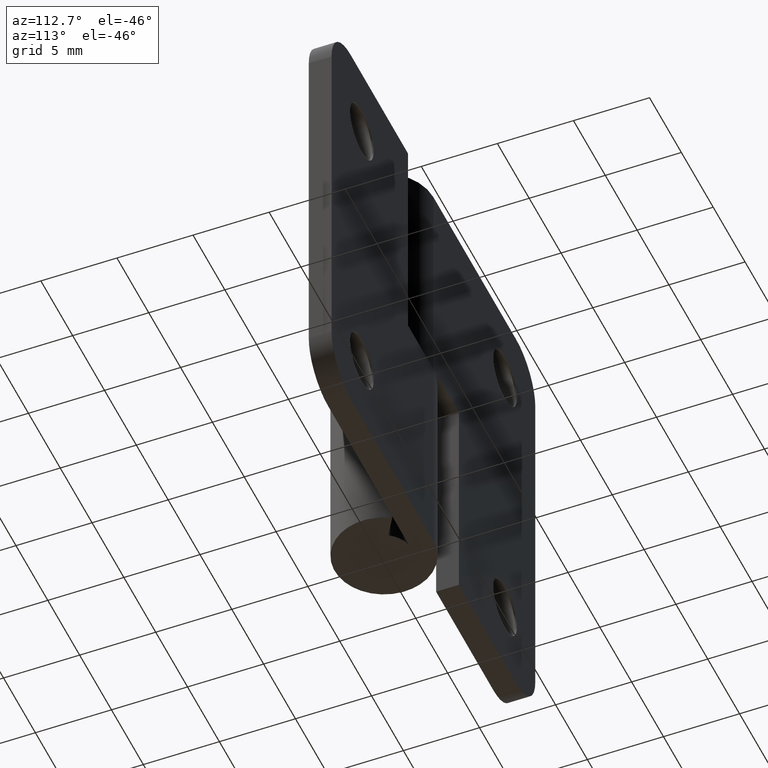
[diagram: clean part render]
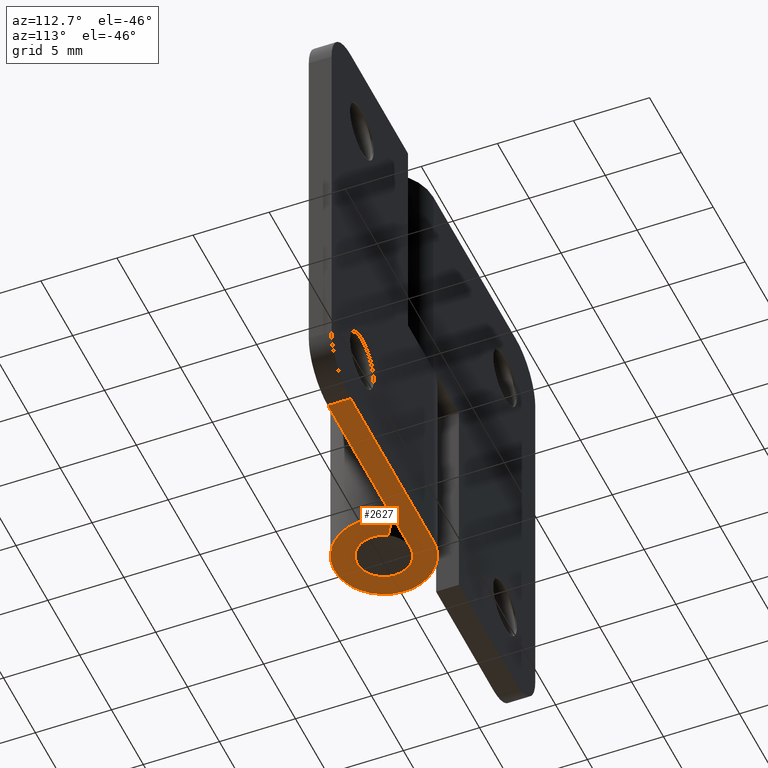
[diagram: same view with one face highlighted and labeled with its STEP entity id]
A machine part, auxiliary view. The second image highlights one B-rep face of the part: STEP entity #2627.
In plain terms, the highlighted face is a freeform B-spline surface patch.
Its self-contained STEP definition (entity closure, byte-faithful):
#2491=CARTESIAN_POINT('',(13.0,1.750000000000000,0.0));
#2492=VERTEX_POINT('',#2491);
#2508=CARTESIAN_POINT('',(13.0,3.250000000000000,0.0));
#2509=VERTEX_POINT('',#2508);
#2510=CARTESIAN_POINT('',(13.0,3.250000000000000,0.0));
#2511=CARTESIAN_POINT('',(13.0,1.750000000000000,0.0));
#2512=QUASI_UNIFORM_CURVE('',1,(#2510,#2511),.UNSPECIFIED.,.F.,.U.);
#2513=EDGE_CURVE('',#2509,#2492,#2512,.T.);
#2558=CARTESIAN_POINT('',(-4.061576820179652,-3.574231957580325,0.0));
#2559=CARTESIAN_POINT('',(13.811682640411140,-3.574231957580325,0.0));
#2560=CARTESIAN_POINT('',(-4.061576820179652,3.574654085169637,0.0));
#2561=CARTESIAN_POINT('',(13.811682640411140,3.574654085169637,0.0));
#2562=B_SPLINE_SURFACE_WITH_KNOTS('',1,1,((#2558,#2560),(#2559,#2561)),.UNSPECIFIED.,.F.,.F.,.U.,(2,2),(2,2),(0.0,17.873259460590791),(0.0,7.148886042749962),.UNSPECIFIED.);
#2563=ORIENTED_EDGE('',*,*,#2513,.T.);
#2564=CARTESIAN_POINT('',(0.0,1.750000000000000,0.0));
#2565=VERTEX_POINT('',#2564);
#2566=CARTESIAN_POINT('',(13.0,1.750000000000000,0.0));
#2567=CARTESIAN_POINT('',(0.0,1.750000000000000,0.0));
#2568=QUASI_UNIFORM_CURVE('',1,(#2566,#2567),.UNSPECIFIED.,.F.,.U.);
#2569=EDGE_CURVE('',#2492,#2565,#2568,.T.);
#2570=ORIENTED_EDGE('',*,*,#2569,.T.);
#2571=CARTESIAN_POINT('',(1.491499582942334,0.915384615384616,0.0));
#2572=VERTEX_POINT('',#2571);
#2573=CARTESIAN_POINT('',(1.491499582942334,0.915384615384617,0.0));
#2574=CARTESIAN_POINT('',(2.198794235805373,-0.237059572591294,0.0));
#2575=CARTESIAN_POINT('',(1.262110806631850,-1.212260826630598,0.0));
#2576=CARTESIAN_POINT('',(0.325427377458326,-2.187462080669902,0.0));
#2577=CARTESIAN_POINT('',(-0.854569167205593,-1.527157993942192,0.0));
#2578=CARTESIAN_POINT('',(-2.034565711869510,-0.866853907214482,0.0));
#2579=CARTESIAN_POINT('',(-1.693373332936190,0.441573046392758,0.0));
#2580=CARTESIAN_POINT('',(-1.352180954002869,1.750000000000001,0.0));
#2581=CARTESIAN_POINT('',(0.0,1.750000000000000,0.0));
#2589=(BOUNDED_CURVE()B_SPLINE_CURVE(2,(#2573,#2574,#2575,#2576,#2577,#2578,#2579,#2580,#2581),.UNSPECIFIED.,.F.,.U.)B_SPLINE_CURVE_WITH_KNOTS((3,2,2,2,3),(0.0,0.250000000000000,0.500000000000000,0.750000000000000,1.0),.UNSPECIFIED.)CURVE()GEOMETRIC_REPRESENTATION_ITEM()RATIONAL_B_SPLINE_CURVE((1.0,0.791305078677490,1.0,0.791305078677490,1.0,0.791305078677490,1.0,0.791305078677490,1.0))REPRESENTATION_ITEM(''));
#2590=EDGE_CURVE('',#2572,#2565,#2589,.T.);
#2591=ORIENTED_EDGE('',*,*,#2590,.F.);
#2592=CARTESIAN_POINT('',(2.769927796892910,1.700000000000000,0.0));
#2593=VERTEX_POINT('',#2592);
#2594=CARTESIAN_POINT('',(1.491499582942334,0.915384615384616,0.0));
#2595=CARTESIAN_POINT('',(2.769927796892910,1.700000000000000,0.0));
#2596=QUASI_UNIFORM_CURVE('',1,(#2594,#2595),.UNSPECIFIED.,.F.,.U.);
#2597=EDGE_CURVE('',#2572,#2593,#2596,.T.);
#2598=ORIENTED_EDGE('',*,*,#2597,.T.);
#2599=CARTESIAN_POINT('',(0.0,3.250000000000000,0.0));
#2600=VERTEX_POINT('',#2599);
#2601=CARTESIAN_POINT('',(2.769927796892908,1.700000000000000,0.0));
#2602=CARTESIAN_POINT('',(4.083475009352836,-0.440253491955264,0.0));
#2603=CARTESIAN_POINT('',(2.343920069459148,-2.251341535171113,0.0));
#2604=CARTESIAN_POINT('',(0.604365129565462,-4.062429578386961,0.0));
#2605=CARTESIAN_POINT('',(-1.587057024810386,-2.836150560178357,0.0));
#2606=CARTESIAN_POINT('',(-3.778479179186233,-1.609871541969753,0.0));
#2607=CARTESIAN_POINT('',(-3.144836189738638,0.820064229015121,0.0));
#2608=CARTESIAN_POINT('',(-2.511193200291042,3.250000000000000,0.0));
#2609=CARTESIAN_POINT('',(0.0,3.250000000000000,0.0));
#2617=(BOUNDED_CURVE()B_SPLINE_CURVE(2,(#2601,#2602,#2603,#2604,#2605,#2606,#2607,#2608,#2609),.UNSPECIFIED.,.F.,.U.)B_SPLINE_CURVE_WITH_KNOTS((3,2,2,2,3),(0.0,0.250000000000000,0.500000000000000,0.750000000000000,1.0),.UNSPECIFIED.)CURVE()GEOMETRIC_REPRESENTATION_ITEM()RATIONAL_B_SPLINE_CURVE((1.0,0.791305078677490,1.0,0.791305078677490,1.0,0.791305078677490,1.0,0.791305078677490,1.0))REPRESENTATION_ITEM(''));
#2618=EDGE_CURVE('',#2593,#2600,#2617,.T.);
#2619=ORIENTED_EDGE('',*,*,#2618,.T.);
#2620=CARTESIAN_POINT('',(0.0,3.250000000000000,0.0));
#2621=CARTESIAN_POINT('',(13.0,3.250000000000000,0.0));
#2622=QUASI_UNIFORM_CURVE('',1,(#2620,#2621),.UNSPECIFIED.,.F.,.U.);
#2623=EDGE_CURVE('',#2600,#2509,#2622,.T.);
#2624=ORIENTED_EDGE('',*,*,#2623,.T.);
#2625=EDGE_LOOP('',(#2563,#2570,#2591,#2598,#2619,#2624));
#2626=FACE_OUTER_BOUND('',#2625,.T.);
#2627=ADVANCED_FACE('',(#2626),#2562,.F.);